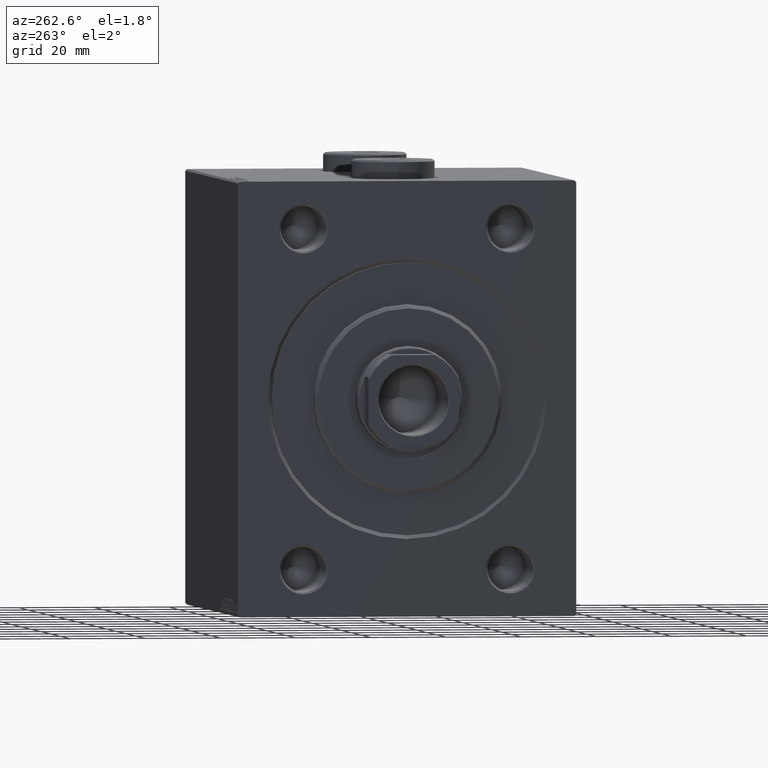
[diagram: clean part render]
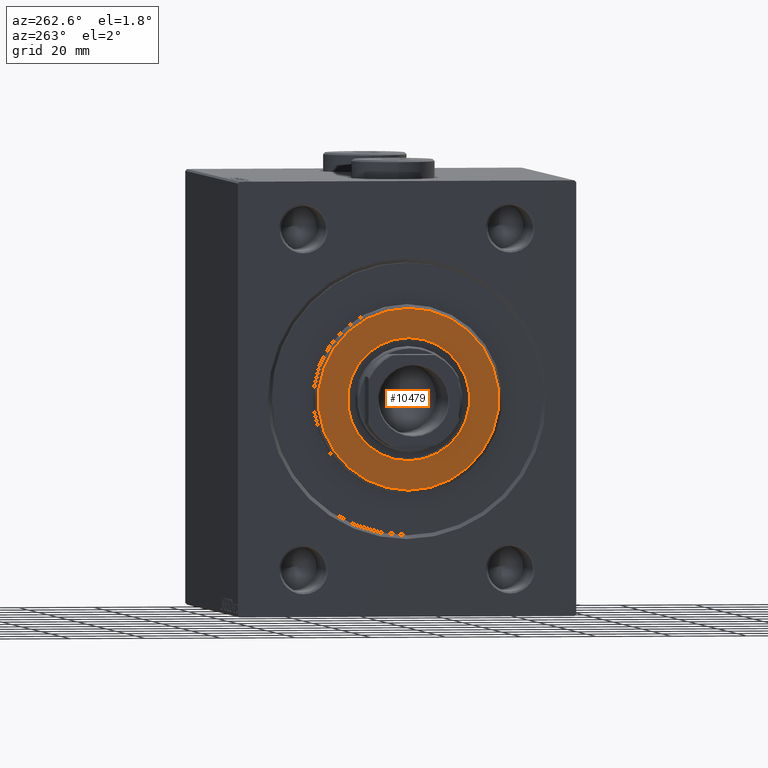
[diagram: same view with one face highlighted and labeled with its STEP entity id]
A machine part, auxiliary view. The second image highlights one B-rep face of the part: STEP entity #10479.
In plain terms, the highlighted planar face has unit normal (-1, 0, 0).
Its self-contained STEP definition (entity closure, byte-faithful):
#185 = EDGE_CURVE ( 'NONE', #2412, #35639, #2243, .T. ) ;
#2243 = CIRCLE ( 'NONE', #30253, 24.00000000000000711 ) ;
#2412 = VERTEX_POINT ( 'NONE', #2534 ) ;
#2534 = CARTESIAN_POINT ( 'NONE',  ( 3.000000000000000000, 0.000000000000000000, 24.00000000000000711 ) ) ;
#2903 = DIRECTION ( 'NONE',  ( 0.000000000000000000, 0.000000000000000000, -1.000000000000000000 ) ) ;
#2980 = VERTEX_POINT ( 'NONE', #41773 ) ;
#5035 = FACE_OUTER_BOUND ( 'NONE', #5874, .T. ) ;
#5874 = EDGE_LOOP ( 'NONE', ( #36314, #9187 ) ) ;
#9187 = ORIENTED_EDGE ( 'NONE', *, *, #11670, .T. ) ;
#9831 = DIRECTION ( 'NONE',  ( 1.000000000000000000, 0.000000000000000000, 0.000000000000000000 ) ) ;
#10479 = ADVANCED_FACE ( 'NONE', ( #5035, #37105 ), #36650, .T. ) ;
#10748 = CIRCLE ( 'NONE', #24745, 16.25000000000000000 ) ;
#11670 = EDGE_CURVE ( 'NONE', #35639, #2412, #40057, .T. ) ;
#12881 = DIRECTION ( 'NONE',  ( 1.000000000000000000, 0.000000000000000000, 0.000000000000000000 ) ) ;
#16316 = DIRECTION ( 'NONE',  ( 0.000000000000000000, 0.000000000000000000, -1.000000000000000000 ) ) ;
#17300 = VERTEX_POINT ( 'NONE', #26043 ) ;
#18912 = CARTESIAN_POINT ( 'NONE',  ( 3.000000000000000000, 0.000000000000000000, 0.000000000000000000 ) ) ;
#19114 = CARTESIAN_POINT ( 'NONE',  ( 3.000000000000000000, 0.000000000000000000, 0.000000000000000000 ) ) ;
#21631 = AXIS2_PLACEMENT_3D ( 'NONE', #25476, #42134, #38657 ) ;
#21781 = CIRCLE ( 'NONE', #31364, 16.25000000000000000 ) ;
#24281 = DIRECTION ( 'NONE',  ( 1.000000000000000000, -0.000000000000000000, 0.000000000000000000 ) ) ;
#24745 = AXIS2_PLACEMENT_3D ( 'NONE', #41699, #9831, #2903 ) ;
#25476 = CARTESIAN_POINT ( 'NONE',  ( 3.000000000000000000, 0.000000000000000000, 0.000000000000000000 ) ) ;
#26043 = CARTESIAN_POINT ( 'NONE',  ( 3.000000000000000000, 0.000000000000000000, -16.25000000000000000 ) ) ;
#26721 = AXIS2_PLACEMENT_3D ( 'NONE', #19114, #36417, #16316 ) ;
#29267 = CARTESIAN_POINT ( 'NONE',  ( 3.000000000000000000, 0.000000000000000000, 0.000000000000000000 ) ) ;
#30253 = AXIS2_PLACEMENT_3D ( 'NONE', #29267, #24281, #32519 ) ;
#31364 = AXIS2_PLACEMENT_3D ( 'NONE', #18912, #12881, #36455 ) ;
#32384 = CARTESIAN_POINT ( 'NONE',  ( 3.000000000000000000, 3.000384657911015469E-15, -24.00000000000000711 ) ) ;
#32495 = EDGE_CURVE ( 'NONE', #2980, #17300, #21781, .T. ) ;
#32519 = DIRECTION ( 'NONE',  ( 0.000000000000000000, 0.000000000000000000, -1.000000000000000000 ) ) ;
#33436 = ORIENTED_EDGE ( 'NONE', *, *, #32495, .F. ) ;
#34271 = EDGE_CURVE ( 'NONE', #17300, #2980, #10748, .T. ) ;
#34306 = EDGE_LOOP ( 'NONE', ( #43816, #33436 ) ) ;
#35639 = VERTEX_POINT ( 'NONE', #32384 ) ;
#36314 = ORIENTED_EDGE ( 'NONE', *, *, #185, .T. ) ;
#36417 = DIRECTION ( 'NONE',  ( 1.000000000000000000, -0.000000000000000000, 0.000000000000000000 ) ) ;
#36455 = DIRECTION ( 'NONE',  ( 0.000000000000000000, 0.000000000000000000, -1.000000000000000000 ) ) ;
#36650 = PLANE ( 'NONE',  #26721 ) ;
#37105 = FACE_BOUND ( 'NONE', #34306, .T. ) ;
#38657 = DIRECTION ( 'NONE',  ( 0.000000000000000000, 0.000000000000000000, -1.000000000000000000 ) ) ;
#40057 = CIRCLE ( 'NONE', #21631, 24.00000000000000711 ) ;
#41699 = CARTESIAN_POINT ( 'NONE',  ( 3.000000000000000000, 0.000000000000000000, 0.000000000000000000 ) ) ;
#41773 = CARTESIAN_POINT ( 'NONE',  ( 3.000000000000000000, 1.990051048614449313E-15, 16.25000000000000000 ) ) ;
#42134 = DIRECTION ( 'NONE',  ( 1.000000000000000000, -0.000000000000000000, 0.000000000000000000 ) ) ;
#43816 = ORIENTED_EDGE ( 'NONE', *, *, #34271, .F. ) ;